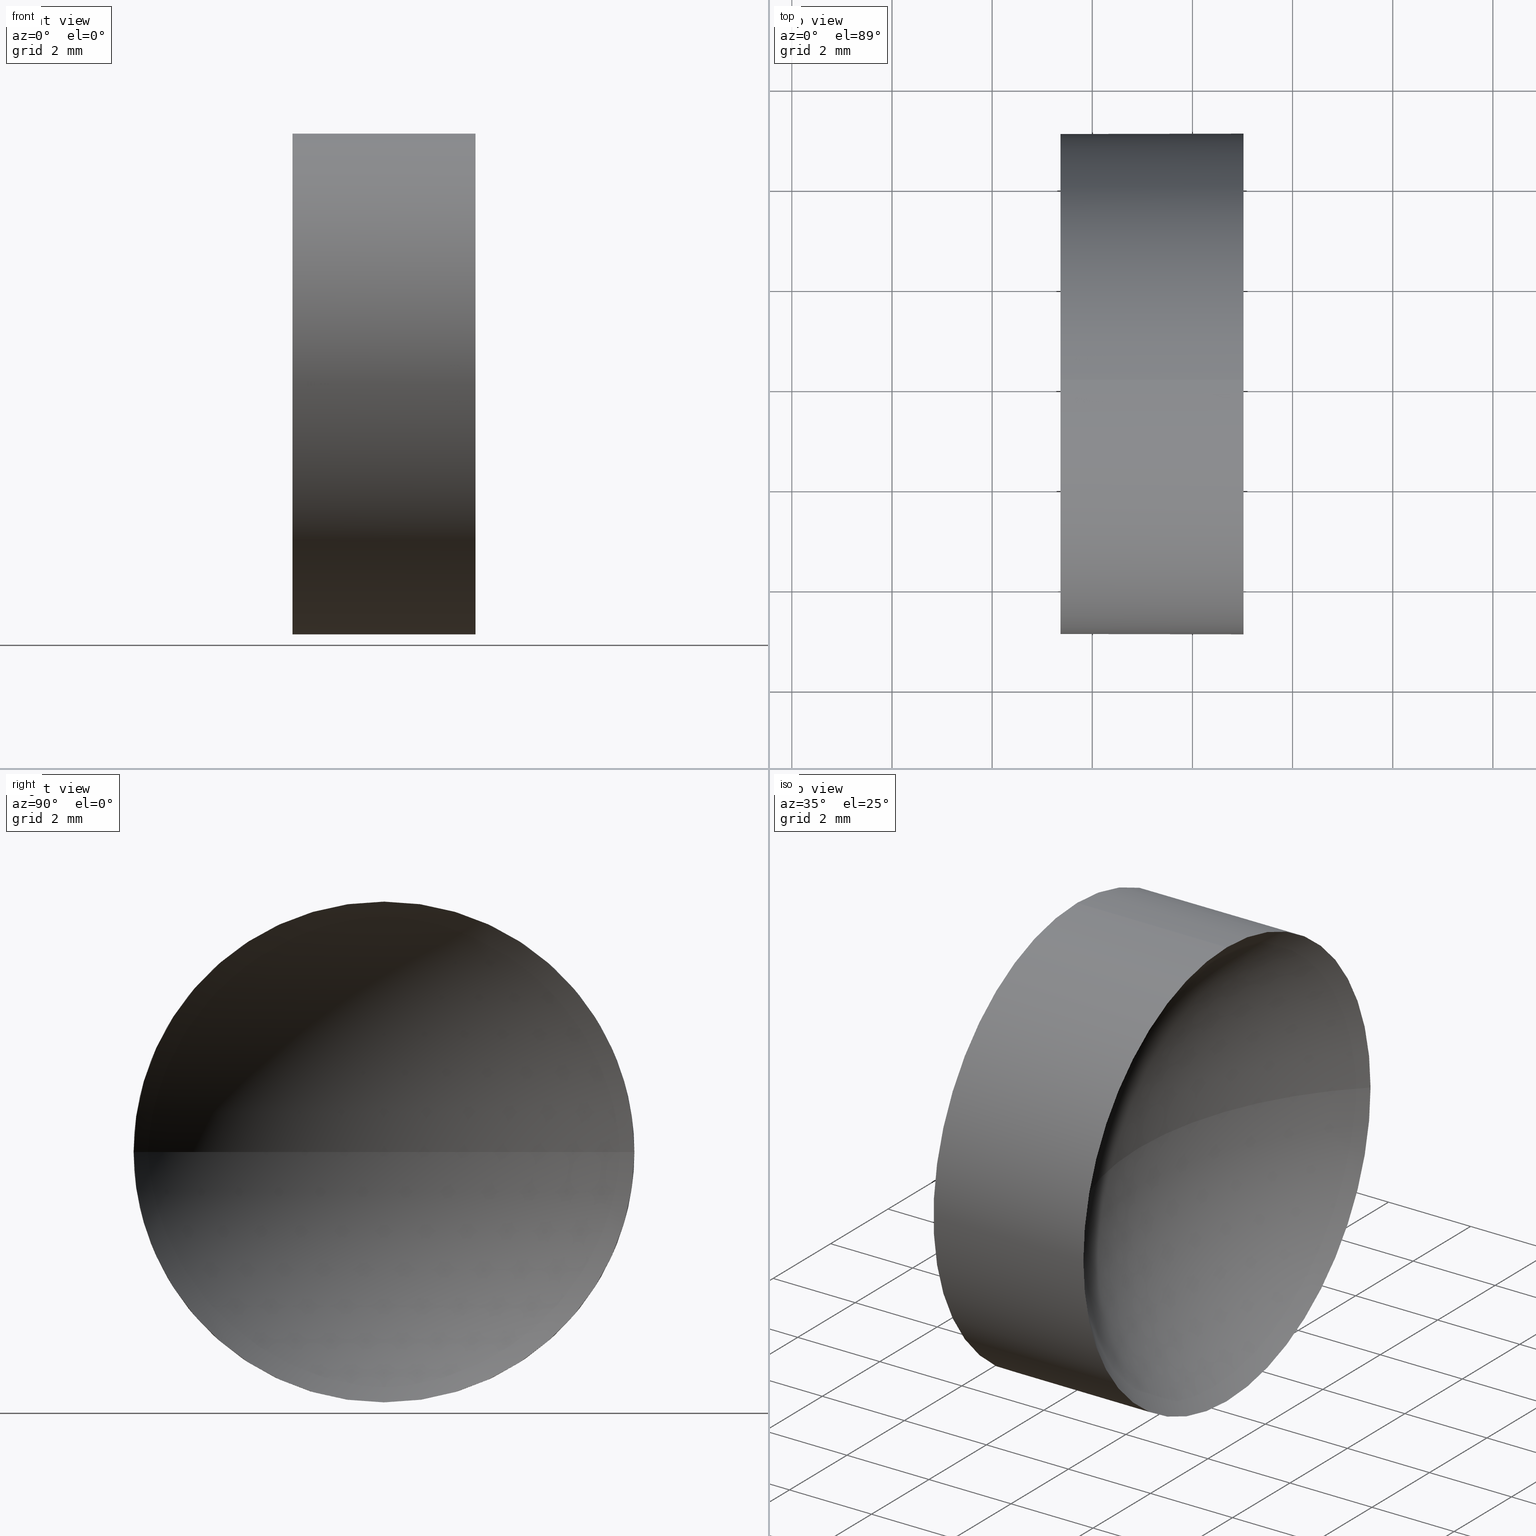
[diagram: canonical four-view strip — front | top / right | iso, engineering-drawing reading convention]
A machine part, canonical four-view strip (front | top / right | iso — engineering-drawing reading convention). The complete STEP part file that produces these views, byte-faithful:
ISO-10303-21;
HEADER;
FILE_DESCRIPTION (( 'STEP AP214' ),
    '1' );
FILE_NAME ('120252.STEP',
    '2019-06-24T08:28:16',
    ( '' ),
    ( '' ),
    'SwSTEP 2.0',
    'SolidWorks 2016',
    '' );
FILE_SCHEMA (( 'AUTOMOTIVE_DESIGN' ));
ENDSEC;

DATA;
#1 = CIRCLE ( 'NONE', #100, 4.999999999999997300 ) ;
#2 = SURFACE_STYLE_FILL_AREA ( #174 ) ;
#3 = PRODUCT_DEFINITION_CONTEXT ( 'detailed design', #36, 'design' ) ;
#4 = EDGE_CURVE ( 'NONE', #163, #142, #1, .T. ) ;
#5 = DIRECTION ( 'NONE',  ( 0.0000000000000000000, -1.224646799147353200E-016, 1.000000000000000000 ) ) ;
#6 = CARTESIAN_POINT ( 'NONE',  ( 41.36582732549757700, 26.06225218280608000, -4.999999999999997300 ) ) ;
#7 = DIRECTION ( 'NONE',  ( -1.000000000000000000, -0.0000000000000000000, -0.0000000000000000000 ) ) ;
#8 = ADVANCED_FACE ( 'NONE', ( #122 ), #75, .F. ) ;
#9 = ORIENTED_EDGE ( 'NONE', *, *, #165, .F. ) ;
#10 = DIRECTION ( 'NONE',  ( 1.000000000000000000, 0.0000000000000000000, 0.0000000000000000000 ) ) ;
#11 = SHAPE_DEFINITION_REPRESENTATION ( #113, #162 ) ;
#12 = ORIENTED_EDGE ( 'NONE', *, *, #131, .T. ) ;
#13 = UNCERTAINTY_MEASURE_WITH_UNIT (LENGTH_MEASURE( 1.000000000000000100E-005 ), #51, 'distance_accuracy_value', 'NONE');
#14 = PRESENTATION_LAYER_ASSIGNMENT (  '', '', ( #168 ) ) ;
#15 = EDGE_CURVE ( 'NONE', #53, #137, #97, .T. ) ;
#16 = ORIENTED_EDGE ( 'NONE', *, *, #89, .T. ) ;
#17 = AXIS2_PLACEMENT_3D ( 'NONE', #127, #82, #10 ) ;
#18 = FACE_OUTER_BOUND ( 'NONE', #74, .T. ) ;
#19 = DIRECTION ( 'NONE',  ( 0.0000000000000000000, 0.0000000000000000000, 1.000000000000000000 ) ) ;
#20 = DIRECTION ( 'NONE',  ( 0.0000000000000000000, 0.0000000000000000000, 1.000000000000000000 ) ) ;
#21 = DIRECTION ( 'NONE',  ( 0.0000000000000000000, 0.0000000000000000000, 1.000000000000000000 ) ) ;
#22 = CARTESIAN_POINT ( 'NONE',  ( 45.01989884529392300, 21.06225218280608800, 0.0000000000000000000 ) ) ;
#23 = EDGE_LOOP ( 'NONE', ( #134, #147, #183, #178 ) ) ;
#24 = ORIENTED_EDGE ( 'NONE', *, *, #86, .T. ) ;
#25 = PRESENTATION_LAYER_ASSIGNMENT (  '', '', ( #160 ) ) ;
#26 = CYLINDRICAL_SURFACE ( 'NONE', #103, 4.999999999999997300 ) ;
#27 = DIRECTION ( 'NONE',  ( 0.0000000000000000000, -1.000000000000000000, 0.0000000000000000000 ) ) ;
#28 = CYLINDRICAL_SURFACE ( 'NONE', #132, 4.999999999999997300 ) ;
#29 = EDGE_CURVE ( 'NONE', #142, #53, #170, .T. ) ;
#30 = ORIENTED_EDGE ( 'NONE', *, *, #29, .T. ) ;
#31 = SURFACE_STYLE_USAGE ( .BOTH. , #92 ) ;
#32 = DIRECTION ( 'NONE',  ( -1.000000000000000000, -0.0000000000000000000, -0.0000000000000000000 ) ) ;
#33 = AXIS2_PLACEMENT_3D ( 'NONE', #124, #121, #20 ) ;
#34 = CIRCLE ( 'NONE', #57, 6.879999999999997200 ) ;
#35 = DIRECTION ( 'NONE',  ( -1.000000000000000000, -0.0000000000000000000, -0.0000000000000000000 ) ) ;
#36 = APPLICATION_CONTEXT ( 'automotive_design' ) ;
#37 = ORIENTED_EDGE ( 'NONE', *, *, #15, .T. ) ;
#38 = AXIS2_PLACEMENT_3D ( 'NONE', #105, #156, #44 ) ;
#39 = MECHANICAL_DESIGN_GEOMETRIC_PRESENTATION_REPRESENTATION (  '', ( #160 ), #50 ) ;
#40 = CARTESIAN_POINT ( 'NONE',  ( 45.01989884529392300, 26.06225218280608000, 0.0000000000000000000 ) ) ;
#41 = DIRECTION ( 'NONE',  ( 0.0000000000000000000, 0.0000000000000000000, 1.000000000000000000 ) ) ;
#42 = EDGE_LOOP ( 'NONE', ( #30, #12, #186, #9, #99 ) ) ;
#43 = AXIS2_PLACEMENT_3D ( 'NONE', #55, #41, #27 ) ;
#44 = DIRECTION ( 'NONE',  ( 0.0000000000000000000, 0.0000000000000000000, 1.000000000000000000 ) ) ;
#45 = CARTESIAN_POINT ( 'NONE',  ( 39.73650001336414300, 26.06225218280608000, -4.999999999999997300 ) ) ;
#46 = DIRECTION ( 'NONE',  ( -1.000000000000000000, -0.0000000000000000000, -0.0000000000000000000 ) ) ;
#47 = ADVANCED_FACE ( 'NONE', ( #144 ), #28, .T. ) ;
#48 = DIRECTION ( 'NONE',  ( -1.000000000000000000, -0.0000000000000000000, -0.0000000000000000000 ) ) ;
#49 = DIRECTION ( 'NONE',  ( 0.0000000000000000000, 0.0000000000000000000, -1.000000000000000000 ) ) ;
#50 =( GEOMETRIC_REPRESENTATION_CONTEXT ( 3 ) GLOBAL_UNCERTAINTY_ASSIGNED_CONTEXT ( ( #101 ) ) GLOBAL_UNIT_ASSIGNED_CONTEXT ( ( #104, #138, #60 ) ) REPRESENTATION_CONTEXT ( 'NONE', 'WORKASPACE' ) );
#51 =( LENGTH_UNIT ( ) NAMED_UNIT ( * ) SI_UNIT ( .MILLI., .METRE. ) );
#52 = ORIENTED_EDGE ( 'NONE', *, *, #131, .F. ) ;
#53 = VERTEX_POINT ( 'NONE', #169 ) ;
#54 = DIRECTION ( 'NONE',  ( 0.0000000000000000000, 0.0000000000000000000, 1.000000000000000000 ) ) ;
#55 = CARTESIAN_POINT ( 'NONE',  ( 49.74582732549756500, 26.06225218280608400, 0.0000000000000000000 ) ) ;
#56 = CARTESIAN_POINT ( 'NONE',  ( 49.74582732549756500, 26.06225218280608400, 0.0000000000000000000 ) ) ;
#57 = AXIS2_PLACEMENT_3D ( 'NONE', #123, #172, #152 ) ;
#58 = PLANE ( 'NONE',  #148 ) ;
#59 = PRODUCT_DEFINITION ( 'δ֪', '', #84, #3 ) ;
#60 =( NAMED_UNIT ( * ) SI_UNIT ( $, .STERADIAN. ) SOLID_ANGLE_UNIT ( ) );
#61 = SURFACE_STYLE_FILL_AREA ( #108 ) ;
#62 = CARTESIAN_POINT ( 'NONE',  ( 45.01989884529392300, 31.06225218280608000, 6.123233995736761400E-016 ) ) ;
#63 =( NAMED_UNIT ( * ) SI_UNIT ( $, .STERADIAN. ) SOLID_ANGLE_UNIT ( ) );
#64 = ADVANCED_FACE ( 'NONE', ( #130 ), #58, .F. ) ;
#65 =( NAMED_UNIT ( * ) PLANE_ANGLE_UNIT ( ) SI_UNIT ( $, .RADIAN. ) );
#66 = AXIS2_PLACEMENT_3D ( 'NONE', #56, #5, #77 ) ;
#67 = CLOSED_SHELL ( 'NONE', ( #47, #8, #141, #140, #64 ) ) ;
#68 = COLOUR_RGB ( '',1.000000000000000000, 1.000000000000000000, 1.000000000000000000 ) ;
#69 =( NAMED_UNIT ( * ) PLANE_ANGLE_UNIT ( ) SI_UNIT ( $, .RADIAN. ) );
#70 = VERTEX_POINT ( 'NONE', #79 ) ;
#71 = EDGE_CURVE ( 'NONE', #142, #70, #150, .T. ) ;
#72 = MANIFOLD_SOLID_BREP ( '��ת1', #67 ) ;
#73 = MECHANICAL_DESIGN_GEOMETRIC_PRESENTATION_REPRESENTATION (  '', ( #168 ), #176 ) ;
#74 = EDGE_LOOP ( 'NONE', ( #83, #151, #179, #24 ) ) ;
#75 = SPHERICAL_SURFACE ( 'NONE', #43, 6.879999999999993700 ) ;
#76 = SPHERICAL_SURFACE ( 'NONE', #112, 6.879999999999993700 ) ;
#77 = DIRECTION ( 'NONE',  ( 0.0000000000000000000, -1.000000000000000000, -1.224646799147353200E-016 ) ) ;
#78 = DIRECTION ( 'NONE',  ( 0.0000000000000000000, 0.0000000000000000000, 1.000000000000000000 ) ) ;
#79 = CARTESIAN_POINT ( 'NONE',  ( 42.86582732549757000, 26.06225218280608400, 0.0000000000000000000 ) ) ;
#80 = APPLICATION_PROTOCOL_DEFINITION ( 'draft international standard', 'automotive_design', 1998, #143 ) ;
#81 = SURFACE_STYLE_USAGE ( .BOTH. , #175 ) ;
#82 = DIRECTION ( 'NONE',  ( 0.0000000000000000000, 0.0000000000000000000, 1.000000000000000000 ) ) ;
#83 = ORIENTED_EDGE ( 'NONE', *, *, #71, .F. ) ;
#84 = PRODUCT_DEFINITION_FORMATION_WITH_SPECIFIED_SOURCE ( '�κ�', '', #98, .NOT_KNOWN. ) ;
#85 = EDGE_LOOP ( 'NONE', ( #16, #96 ) ) ;
#86 = EDGE_CURVE ( 'NONE', #137, #70, #34, .T. ) ;
#87 = EDGE_CURVE ( 'NONE', #137, #163, #117, .T. ) ;
#88 = VERTEX_POINT ( 'NONE', #173 ) ;
#89 = EDGE_CURVE ( 'NONE', #88, #136, #164, .T. ) ;
#90 = DIRECTION ( 'NONE',  ( 0.0000000000000000000, 0.0000000000000000000, 1.000000000000000000 ) ) ;
#91 = FILL_AREA_STYLE_COLOUR ( '', #107 ) ;
#92 = SURFACE_SIDE_STYLE ('',( #61 ) ) ;
#93 = CARTESIAN_POINT ( 'NONE',  ( 49.74582732549756500, 26.06225218280608400, 0.0000000000000000000 ) ) ;
#94 = PRODUCT_RELATED_PRODUCT_CATEGORY ( 'part', '', ( #98 ) ) ;
#95 = CARTESIAN_POINT ( 'NONE',  ( 45.01989884529392300, 26.06225218280608000, 4.999999999999997300 ) ) ;
#96 = ORIENTED_EDGE ( 'NONE', *, *, #110, .T. ) ;
#97 = CIRCLE ( 'NONE', #38, 4.999999999999997300 ) ;
#98 = PRODUCT ( '120252', '120252', '', ( #129 ) ) ;
#99 = ORIENTED_EDGE ( 'NONE', *, *, #4, .T. ) ;
#100 = AXIS2_PLACEMENT_3D ( 'NONE', #40, #149, #54 ) ;
#101 = UNCERTAINTY_MEASURE_WITH_UNIT (LENGTH_MEASURE( 1.000000000000000100E-005 ), #104, 'distance_accuracy_value', 'NONE');
#102 = LINE ( 'NONE', #114, #118 ) ;
#103 = AXIS2_PLACEMENT_3D ( 'NONE', #182, #7, #125 ) ;
#104 =( LENGTH_UNIT ( ) NAMED_UNIT ( * ) SI_UNIT ( .MILLI., .METRE. ) );
#105 = CARTESIAN_POINT ( 'NONE',  ( 45.01989884529392300, 26.06225218280608000, 0.0000000000000000000 ) ) ;
#106 = CARTESIAN_POINT ( 'NONE',  ( 41.36582732549757700, 26.06225218280608000, 0.0000000000000000000 ) ) ;
#107 = COLOUR_RGB ( '',1.000000000000000000, 1.000000000000000000, 1.000000000000000000 ) ;
#108 = FILL_AREA_STYLE ('',( #91 ) ) ;
#109 =( NAMED_UNIT ( * ) SI_UNIT ( $, .STERADIAN. ) SOLID_ANGLE_UNIT ( ) );
#110 = EDGE_CURVE ( 'NONE', #136, #88, #184, .T. ) ;
#111 = ORIENTED_EDGE ( 'NONE', *, *, #110, .F. ) ;
#112 = AXIS2_PLACEMENT_3D ( 'NONE', #93, #120, #135 ) ;
#113 = PRODUCT_DEFINITION_SHAPE ( 'NONE', 'NONE',  #59 ) ;
#114 = CARTESIAN_POINT ( 'NONE',  ( 39.73650001336414300, 26.06225218280608000, 4.999999999999997300 ) ) ;
#115 = UNCERTAINTY_MEASURE_WITH_UNIT (LENGTH_MEASURE( 1.000000000000000100E-005 ), #177, 'distance_accuracy_value', 'NONE');
#116 = LINE ( 'NONE', #45, #171 ) ;
#117 = CIRCLE ( 'NONE', #145, 4.999999999999997300 ) ;
#118 = VECTOR ( 'NONE', #35, 1000.000000000000000 ) ;
#119 =( GEOMETRIC_REPRESENTATION_CONTEXT ( 3 ) GLOBAL_UNCERTAINTY_ASSIGNED_CONTEXT ( ( #115 ) ) GLOBAL_UNIT_ASSIGNED_CONTEXT ( ( #177, #69, #63 ) ) REPRESENTATION_CONTEXT ( 'NONE', 'WORKASPACE' ) );
#120 = DIRECTION ( 'NONE',  ( 0.0000000000000000000, 0.0000000000000000000, 1.000000000000000000 ) ) ;
#121 = DIRECTION ( 'NONE',  ( -1.000000000000000000, -0.0000000000000000000, -0.0000000000000000000 ) ) ;
#122 = FACE_OUTER_BOUND ( 'NONE', #23, .T. ) ;
#123 = CARTESIAN_POINT ( 'NONE',  ( 49.74582732549756500, 26.06225218280608400, 0.0000000000000000000 ) ) ;
#124 = CARTESIAN_POINT ( 'NONE',  ( 41.36582732549757700, 26.06225218280608000, 0.0000000000000000000 ) ) ;
#125 = DIRECTION ( 'NONE',  ( 0.0000000000000000000, 0.0000000000000000000, 1.000000000000000000 ) ) ;
#126 = ORIENTED_EDGE ( 'NONE', *, *, #165, .T. ) ;
#127 = CARTESIAN_POINT ( 'NONE',  ( 0.0000000000000000000, 0.0000000000000000000, 0.0000000000000000000 ) ) ;
#128 = AXIS2_PLACEMENT_3D ( 'NONE', #153, #46, #90 ) ;
#129 = PRODUCT_CONTEXT ( 'NONE', #143, 'mechanical' ) ;
#130 = FACE_OUTER_BOUND ( 'NONE', #85, .T. ) ;
#131 = EDGE_CURVE ( 'NONE', #53, #136, #116, .T. ) ;
#132 = AXIS2_PLACEMENT_3D ( 'NONE', #166, #133, #19 ) ;
#133 = DIRECTION ( 'NONE',  ( -1.000000000000000000, -0.0000000000000000000, -0.0000000000000000000 ) ) ;
#134 = ORIENTED_EDGE ( 'NONE', *, *, #29, .F. ) ;
#135 = DIRECTION ( 'NONE',  ( 0.0000000000000000000, -1.000000000000000000, 0.0000000000000000000 ) ) ;
#136 = VERTEX_POINT ( 'NONE', #6 ) ;
#137 = VERTEX_POINT ( 'NONE', #22 ) ;
#138 =( NAMED_UNIT ( * ) PLANE_ANGLE_UNIT ( ) SI_UNIT ( $, .RADIAN. ) );
#139 = CARTESIAN_POINT ( 'NONE',  ( 41.36582732549757700, 26.06225218280608000, 0.0000000000000000000 ) ) ;
#140 = ADVANCED_FACE ( 'NONE', ( #185 ), #26, .T. ) ;
#141 = ADVANCED_FACE ( 'NONE', ( #18 ), #76, .F. ) ;
#142 = VERTEX_POINT ( 'NONE', #62 ) ;
#143 = APPLICATION_CONTEXT ( 'automotive_design' ) ;
#144 = FACE_OUTER_BOUND ( 'NONE', #42, .T. ) ;
#145 = AXIS2_PLACEMENT_3D ( 'NONE', #181, #48, #78 ) ;
#146 = EDGE_LOOP ( 'NONE', ( #52, #37, #167, #126, #111 ) ) ;
#147 = ORIENTED_EDGE ( 'NONE', *, *, #71, .T. ) ;
#148 = AXIS2_PLACEMENT_3D ( 'NONE', #139, #154, #49 ) ;
#149 = DIRECTION ( 'NONE',  ( -1.000000000000000000, -0.0000000000000000000, -0.0000000000000000000 ) ) ;
#150 = CIRCLE ( 'NONE', #66, 6.879999999999993700 ) ;
#151 = ORIENTED_EDGE ( 'NONE', *, *, #4, .F. ) ;
#152 = DIRECTION ( 'NONE',  ( -1.000000000000000000, 0.0000000000000000000, 0.0000000000000000000 ) ) ;
#153 = CARTESIAN_POINT ( 'NONE',  ( 45.01989884529392300, 26.06225218280608000, 0.0000000000000000000 ) ) ;
#154 = DIRECTION ( 'NONE',  ( 1.000000000000000000, 0.0000000000000000000, 0.0000000000000000000 ) ) ;
#155 = PRESENTATION_STYLE_ASSIGNMENT (( #31 ) ) ;
#156 = DIRECTION ( 'NONE',  ( -1.000000000000000000, -0.0000000000000000000, -0.0000000000000000000 ) ) ;
#157 = AXIS2_PLACEMENT_3D ( 'NONE', #106, #32, #21 ) ;
#158 = DIRECTION ( 'NONE',  ( -1.000000000000000000, -0.0000000000000000000, -0.0000000000000000000 ) ) ;
#159 = FILL_AREA_STYLE_COLOUR ( '', #68 ) ;
#160 = STYLED_ITEM ( 'NONE', ( #155 ), #72 ) ;
#161 = APPLICATION_PROTOCOL_DEFINITION ( 'draft international standard', 'automotive_design', 1998, #36 ) ;
#162 = ADVANCED_BREP_SHAPE_REPRESENTATION ( '120252', ( #72, #17 ), #119 ) ;
#163 = VERTEX_POINT ( 'NONE', #95 ) ;
#164 = CIRCLE ( 'NONE', #157, 4.999999999999997300 ) ;
#165 = EDGE_CURVE ( 'NONE', #163, #88, #102, .T. ) ;
#166 = CARTESIAN_POINT ( 'NONE',  ( 39.73650001336414300, 26.06225218280608000, 0.0000000000000000000 ) ) ;
#167 = ORIENTED_EDGE ( 'NONE', *, *, #87, .T. ) ;
#168 = STYLED_ITEM ( 'NONE', ( #180 ), #162 ) ;
#169 = CARTESIAN_POINT ( 'NONE',  ( 45.01989884529392300, 26.06225218280608000, -4.999999999999997300 ) ) ;
#170 = CIRCLE ( 'NONE', #128, 4.999999999999997300 ) ;
#171 = VECTOR ( 'NONE', #158, 1000.000000000000000 ) ;
#172 = DIRECTION ( 'NONE',  ( 0.0000000000000000000, 0.0000000000000000000, -1.000000000000000000 ) ) ;
#173 = CARTESIAN_POINT ( 'NONE',  ( 41.36582732549757700, 26.06225218280608000, 4.999999999999997300 ) ) ;
#174 = FILL_AREA_STYLE ('',( #159 ) ) ;
#175 = SURFACE_SIDE_STYLE ('',( #2 ) ) ;
#176 =( GEOMETRIC_REPRESENTATION_CONTEXT ( 3 ) GLOBAL_UNCERTAINTY_ASSIGNED_CONTEXT ( ( #13 ) ) GLOBAL_UNIT_ASSIGNED_CONTEXT ( ( #51, #65, #109 ) ) REPRESENTATION_CONTEXT ( 'NONE', 'WORKASPACE' ) );
#177 =( LENGTH_UNIT ( ) NAMED_UNIT ( * ) SI_UNIT ( .MILLI., .METRE. ) );
#178 = ORIENTED_EDGE ( 'NONE', *, *, #15, .F. ) ;
#179 = ORIENTED_EDGE ( 'NONE', *, *, #87, .F. ) ;
#180 = PRESENTATION_STYLE_ASSIGNMENT (( #81 ) ) ;
#181 = CARTESIAN_POINT ( 'NONE',  ( 45.01989884529392300, 26.06225218280608000, 0.0000000000000000000 ) ) ;
#182 = CARTESIAN_POINT ( 'NONE',  ( 39.73650001336414300, 26.06225218280608000, 0.0000000000000000000 ) ) ;
#183 = ORIENTED_EDGE ( 'NONE', *, *, #86, .F. ) ;
#184 = CIRCLE ( 'NONE', #33, 4.999999999999997300 ) ;
#185 = FACE_OUTER_BOUND ( 'NONE', #146, .T. ) ;
#186 = ORIENTED_EDGE ( 'NONE', *, *, #89, .F. ) ;
ENDSEC;
END-ISO-10303-21;
